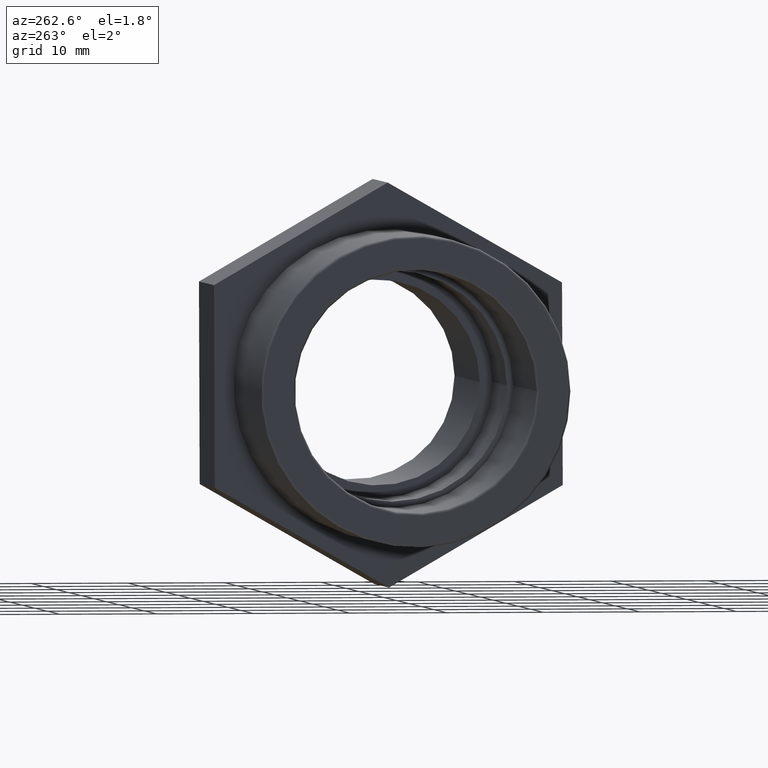
[diagram: clean part render]
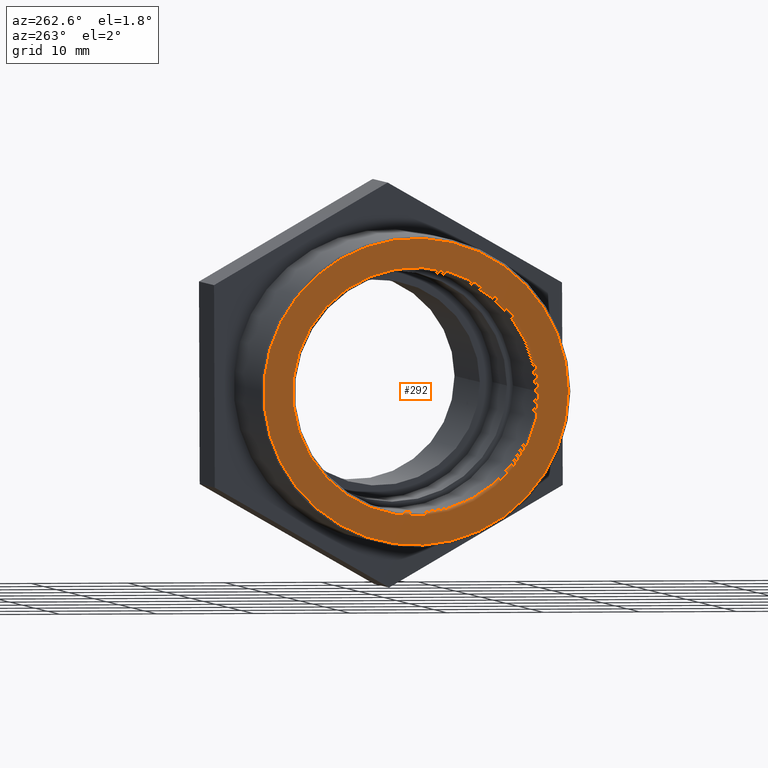
[diagram: same view with one face highlighted and labeled with its STEP entity id]
A machine part, auxiliary view. The second image highlights one B-rep face of the part: STEP entity #292.
In plain terms, the highlighted planar face has unit normal (-1, -0, 0).
Its self-contained STEP definition (entity closure, byte-faithful):
#26=FACE_BOUND('',#93,.T.);
#41=CIRCLE('',#321,12.75);
#43=CIRCLE('',#324,15.75);
#65=FACE_OUTER_BOUND('',#92,.T.);
#92=EDGE_LOOP('',(#240));
#93=EDGE_LOOP('',(#241));
#164=VERTEX_POINT('',#483);
#166=VERTEX_POINT('',#488);
#196=EDGE_CURVE('',#164,#164,#41,.T.);
#198=EDGE_CURVE('',#166,#166,#43,.T.);
#240=ORIENTED_EDGE('',*,*,#198,.F.);
#241=ORIENTED_EDGE('',*,*,#196,.F.);
#275=PLANE('',#323);
#292=ADVANCED_FACE('',(#65,#26),#275,.T.);
#321=AXIS2_PLACEMENT_3D('',#484,#394,#395);
#323=AXIS2_PLACEMENT_3D('',#487,#398,#399);
#324=AXIS2_PLACEMENT_3D('',#489,#400,#401);
#394=DIRECTION('center_axis',(-1.,-6.73555739531044E-16,0.));
#395=DIRECTION('ref_axis',(-6.73555739531044E-16,1.,6.12323399573677E-17));
#398=DIRECTION('center_axis',(-1.,-6.73555739531044E-16,0.));
#399=DIRECTION('ref_axis',(0.,0.,1.));
#400=DIRECTION('center_axis',(1.,6.73555739531044E-16,0.));
#401=DIRECTION('ref_axis',(-6.73555739531044E-16,1.,6.12323399573677E-17));
#483=CARTESIAN_POINT('',(-25.5,-12.75,7.80712334456437E-16));
#484=CARTESIAN_POINT('Origin',(-25.5,-1.2491397351303E-14,0.));
#487=CARTESIAN_POINT('Origin',(-25.5,-12.5,0.));
#488=CARTESIAN_POINT('',(-25.5,-15.75,-2.89322806298562E-15));
#489=CARTESIAN_POINT('Origin',(-25.5,-1.2491397351303E-14,0.));